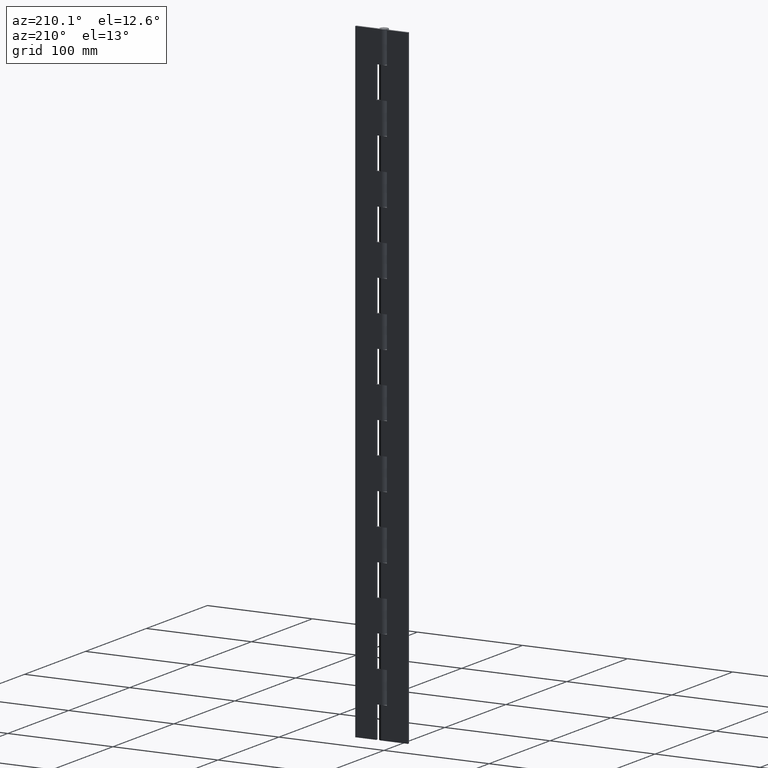
[diagram: clean part render]
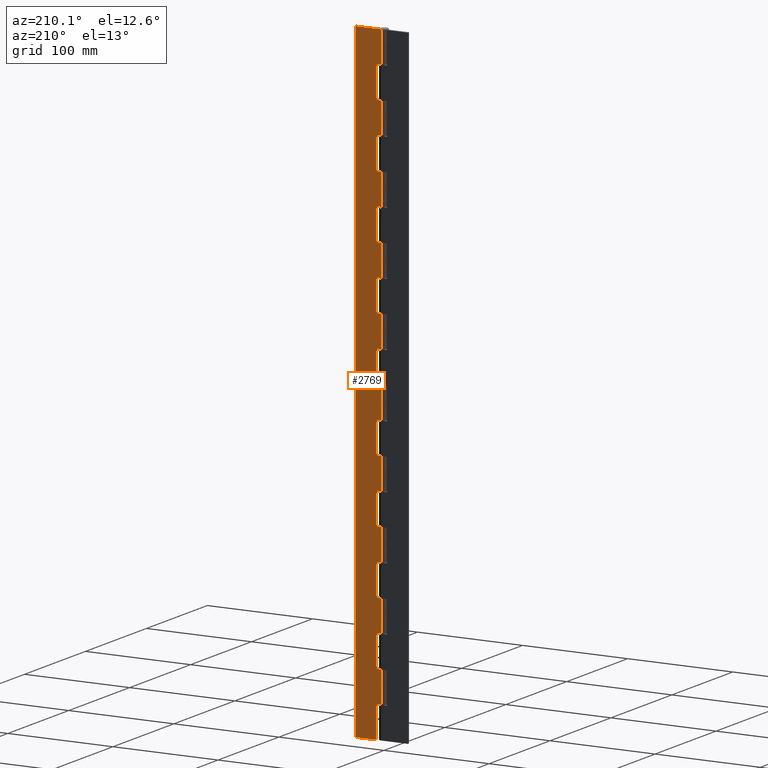
[diagram: same view with one face highlighted and labeled with its STEP entity id]
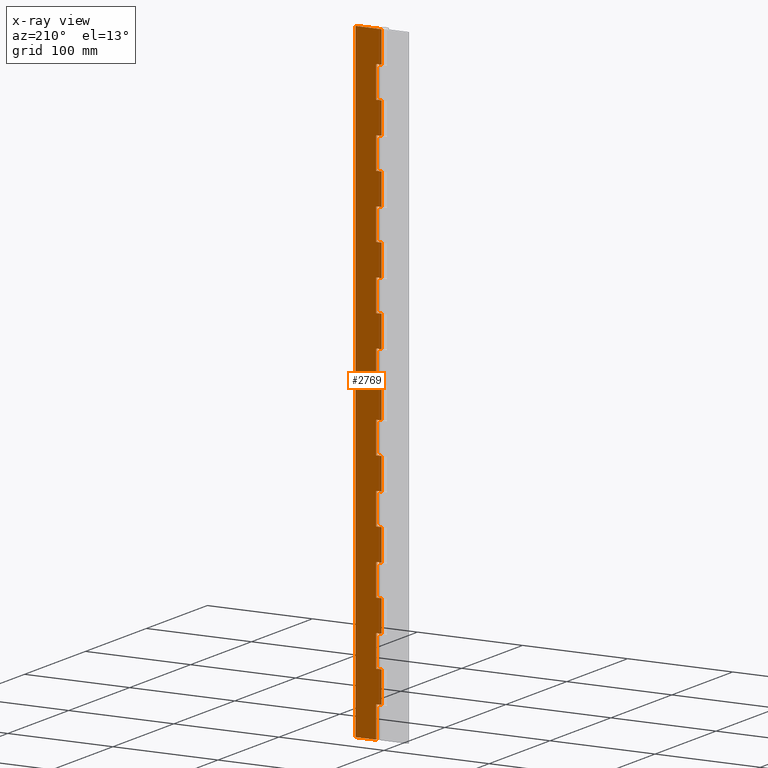
[diagram: x-ray of the same camera — body ghosted, the highlighted face saturated]
A machine part, auxiliary view. The second image highlights one B-rep face of the part: STEP entity #2769.
The next image is the same camera in x-ray: the body ghosted, the highlighted face saturated — about 0% of this face is hidden behind the body in this view.
In plain terms, the highlighted face is a freeform B-spline surface patch.
Its self-contained STEP definition (entity closure, byte-faithful):
#51=CARTESIAN_POINT('',(0.0,4.0,570.0));
#52=VERTEX_POINT('',#51);
#72=CARTESIAN_POINT('',(5.0,4.0,570.0));
#73=VERTEX_POINT('',#72);
#74=CARTESIAN_POINT('',(5.0,4.0,570.0));
#75=CARTESIAN_POINT('',(0.0,4.0,570.0));
#76=QUASI_UNIFORM_CURVE('',1,(#74,#75),.UNSPECIFIED.,.F.,.U.);
#77=EDGE_CURVE('',#73,#52,#76,.T.);
#136=CARTESIAN_POINT('',(5.0,4.0,540.0));
#137=VERTEX_POINT('',#136);
#143=CARTESIAN_POINT('',(0.0,4.0,540.0));
#144=VERTEX_POINT('',#143);
#145=CARTESIAN_POINT('',(0.0,4.0,540.0));
#146=CARTESIAN_POINT('',(5.0,4.0,540.0));
#147=QUASI_UNIFORM_CURVE('',1,(#145,#146),.UNSPECIFIED.,.F.,.U.);
#148=EDGE_CURVE('',#144,#137,#147,.T.);
#211=CARTESIAN_POINT('',(5.0,4.0,540.0));
#212=CARTESIAN_POINT('',(5.0,4.0,570.0));
#213=QUASI_UNIFORM_CURVE('',1,(#211,#212),.UNSPECIFIED.,.F.,.U.);
#214=EDGE_CURVE('',#137,#73,#213,.T.);
#227=CARTESIAN_POINT('',(0.0,4.0,510.0));
#228=VERTEX_POINT('',#227);
#248=CARTESIAN_POINT('',(5.0,4.0,510.0));
#249=VERTEX_POINT('',#248);
#250=CARTESIAN_POINT('',(5.0,4.0,510.0));
#251=CARTESIAN_POINT('',(0.0,4.0,510.0));
#252=QUASI_UNIFORM_CURVE('',1,(#250,#251),.UNSPECIFIED.,.F.,.U.);
#253=EDGE_CURVE('',#249,#228,#252,.T.);
#312=CARTESIAN_POINT('',(5.0,4.0,480.0));
#313=VERTEX_POINT('',#312);
#319=CARTESIAN_POINT('',(0.0,4.0,480.0));
#320=VERTEX_POINT('',#319);
#321=CARTESIAN_POINT('',(0.0,4.0,480.0));
#322=CARTESIAN_POINT('',(5.0,4.0,480.0));
#323=QUASI_UNIFORM_CURVE('',1,(#321,#322),.UNSPECIFIED.,.F.,.U.);
#324=EDGE_CURVE('',#320,#313,#323,.T.);
#387=CARTESIAN_POINT('',(5.0,4.0,480.0));
#388=CARTESIAN_POINT('',(5.0,4.0,510.0));
#389=QUASI_UNIFORM_CURVE('',1,(#387,#388),.UNSPECIFIED.,.F.,.U.);
#390=EDGE_CURVE('',#313,#249,#389,.T.);
#403=CARTESIAN_POINT('',(0.0,4.0,450.0));
#404=VERTEX_POINT('',#403);
#424=CARTESIAN_POINT('',(5.0,4.0,450.0));
#425=VERTEX_POINT('',#424);
#426=CARTESIAN_POINT('',(5.0,4.0,450.0));
#427=CARTESIAN_POINT('',(0.0,4.0,450.0));
#428=QUASI_UNIFORM_CURVE('',1,(#426,#427),.UNSPECIFIED.,.F.,.U.);
#429=EDGE_CURVE('',#425,#404,#428,.T.);
#488=CARTESIAN_POINT('',(5.0,4.0,420.0));
#489=VERTEX_POINT('',#488);
#495=CARTESIAN_POINT('',(0.0,4.0,420.0));
#496=VERTEX_POINT('',#495);
#497=CARTESIAN_POINT('',(0.0,4.0,420.0));
#498=CARTESIAN_POINT('',(5.0,4.0,420.0));
#499=QUASI_UNIFORM_CURVE('',1,(#497,#498),.UNSPECIFIED.,.F.,.U.);
#500=EDGE_CURVE('',#496,#489,#499,.T.);
#563=CARTESIAN_POINT('',(5.0,4.0,420.0));
#564=CARTESIAN_POINT('',(5.0,4.0,450.0));
#565=QUASI_UNIFORM_CURVE('',1,(#563,#564),.UNSPECIFIED.,.F.,.U.);
#566=EDGE_CURVE('',#489,#425,#565,.T.);
#579=CARTESIAN_POINT('',(0.0,4.0,390.0));
#580=VERTEX_POINT('',#579);
#600=CARTESIAN_POINT('',(5.0,4.0,390.0));
#601=VERTEX_POINT('',#600);
#602=CARTESIAN_POINT('',(5.0,4.0,390.0));
#603=CARTESIAN_POINT('',(0.0,4.0,390.0));
#604=QUASI_UNIFORM_CURVE('',1,(#602,#603),.UNSPECIFIED.,.F.,.U.);
#605=EDGE_CURVE('',#601,#580,#604,.T.);
#664=CARTESIAN_POINT('',(5.0,4.0,360.0));
#665=VERTEX_POINT('',#664);
#671=CARTESIAN_POINT('',(0.0,4.0,360.0));
#672=VERTEX_POINT('',#671);
#673=CARTESIAN_POINT('',(0.0,4.0,360.0));
#674=CARTESIAN_POINT('',(5.0,4.0,360.0));
#675=QUASI_UNIFORM_CURVE('',1,(#673,#674),.UNSPECIFIED.,.F.,.U.);
#676=EDGE_CURVE('',#672,#665,#675,.T.);
#739=CARTESIAN_POINT('',(5.0,4.0,360.0));
#740=CARTESIAN_POINT('',(5.0,4.0,390.0));
#741=QUASI_UNIFORM_CURVE('',1,(#739,#740),.UNSPECIFIED.,.F.,.U.);
#742=EDGE_CURVE('',#665,#601,#741,.T.);
#755=CARTESIAN_POINT('',(0.0,4.0,330.0));
#756=VERTEX_POINT('',#755);
#776=CARTESIAN_POINT('',(5.0,4.0,330.0));
#777=VERTEX_POINT('',#776);
#778=CARTESIAN_POINT('',(5.0,4.0,330.0));
#779=CARTESIAN_POINT('',(0.0,4.0,330.0));
#780=QUASI_UNIFORM_CURVE('',1,(#778,#779),.UNSPECIFIED.,.F.,.U.);
#781=EDGE_CURVE('',#777,#756,#780,.T.);
#840=CARTESIAN_POINT('',(5.0,4.0,300.0));
#841=VERTEX_POINT('',#840);
#847=CARTESIAN_POINT('',(0.0,4.0,300.0));
#848=VERTEX_POINT('',#847);
#849=CARTESIAN_POINT('',(0.0,4.0,300.0));
#850=CARTESIAN_POINT('',(5.0,4.0,300.0));
#851=QUASI_UNIFORM_CURVE('',1,(#849,#850),.UNSPECIFIED.,.F.,.U.);
#852=EDGE_CURVE('',#848,#841,#851,.T.);
#915=CARTESIAN_POINT('',(5.0,4.0,300.0));
#916=CARTESIAN_POINT('',(5.0,4.0,330.0));
#917=QUASI_UNIFORM_CURVE('',1,(#915,#916),.UNSPECIFIED.,.F.,.U.);
#918=EDGE_CURVE('',#841,#777,#917,.T.);
#931=CARTESIAN_POINT('',(0.0,4.0,270.0));
#932=VERTEX_POINT('',#931);
#952=CARTESIAN_POINT('',(5.0,4.0,270.0));
#953=VERTEX_POINT('',#952);
#954=CARTESIAN_POINT('',(5.0,4.0,270.0));
#955=CARTESIAN_POINT('',(0.0,4.0,270.0));
#956=QUASI_UNIFORM_CURVE('',1,(#954,#955),.UNSPECIFIED.,.F.,.U.);
#957=EDGE_CURVE('',#953,#932,#956,.T.);
#1016=CARTESIAN_POINT('',(5.0,4.0,240.0));
#1017=VERTEX_POINT('',#1016);
#1023=CARTESIAN_POINT('',(0.0,4.0,240.0));
#1024=VERTEX_POINT('',#1023);
#1025=CARTESIAN_POINT('',(0.0,4.0,240.0));
#1026=CARTESIAN_POINT('',(5.0,4.0,240.0));
#1027=QUASI_UNIFORM_CURVE('',1,(#1025,#1026),.UNSPECIFIED.,.F.,.U.);
#1028=EDGE_CURVE('',#1024,#1017,#1027,.T.);
#1091=CARTESIAN_POINT('',(5.0,4.0,240.0));
#1092=CARTESIAN_POINT('',(5.0,4.0,270.0));
#1093=QUASI_UNIFORM_CURVE('',1,(#1091,#1092),.UNSPECIFIED.,.F.,.U.);
#1094=EDGE_CURVE('',#1017,#953,#1093,.T.);
#1107=CARTESIAN_POINT('',(0.0,4.0,210.0));
#1108=VERTEX_POINT('',#1107);
#1128=CARTESIAN_POINT('',(5.0,4.0,210.0));
#1129=VERTEX_POINT('',#1128);
#1130=CARTESIAN_POINT('',(5.0,4.0,210.0));
#1131=CARTESIAN_POINT('',(0.0,4.0,210.0));
#1132=QUASI_UNIFORM_CURVE('',1,(#1130,#1131),.UNSPECIFIED.,.F.,.U.);
#1133=EDGE_CURVE('',#1129,#1108,#1132,.T.);
#1192=CARTESIAN_POINT('',(5.0,4.0,180.0));
#1193=VERTEX_POINT('',#1192);
#1199=CARTESIAN_POINT('',(0.0,4.0,180.0));
#1200=VERTEX_POINT('',#1199);
#1201=CARTESIAN_POINT('',(0.0,4.0,180.0));
#1202=CARTESIAN_POINT('',(5.0,4.0,180.0));
#1203=QUASI_UNIFORM_CURVE('',1,(#1201,#1202),.UNSPECIFIED.,.F.,.U.);
#1204=EDGE_CURVE('',#1200,#1193,#1203,.T.);
#1267=CARTESIAN_POINT('',(5.0,4.0,180.0));
#1268=CARTESIAN_POINT('',(5.0,4.0,210.0));
#1269=QUASI_UNIFORM_CURVE('',1,(#1267,#1268),.UNSPECIFIED.,.F.,.U.);
#1270=EDGE_CURVE('',#1193,#1129,#1269,.T.);
#1283=CARTESIAN_POINT('',(0.0,4.0,150.0));
#1284=VERTEX_POINT('',#1283);
#1304=CARTESIAN_POINT('',(5.0,4.0,150.0));
#1305=VERTEX_POINT('',#1304);
#1306=CARTESIAN_POINT('',(5.0,4.0,150.0));
#1307=CARTESIAN_POINT('',(0.0,4.0,150.0));
#1308=QUASI_UNIFORM_CURVE('',1,(#1306,#1307),.UNSPECIFIED.,.F.,.U.);
#1309=EDGE_CURVE('',#1305,#1284,#1308,.T.);
#1368=CARTESIAN_POINT('',(5.0,4.0,120.0));
#1369=VERTEX_POINT('',#1368);
#1375=CARTESIAN_POINT('',(0.0,4.0,120.0));
#1376=VERTEX_POINT('',#1375);
#1377=CARTESIAN_POINT('',(0.0,4.0,120.0));
#1378=CARTESIAN_POINT('',(5.0,4.0,120.0));
#1379=QUASI_UNIFORM_CURVE('',1,(#1377,#1378),.UNSPECIFIED.,.F.,.U.);
#1380=EDGE_CURVE('',#1376,#1369,#1379,.T.);
#1443=CARTESIAN_POINT('',(5.0,4.0,120.0));
#1444=CARTESIAN_POINT('',(5.0,4.0,150.0));
#1445=QUASI_UNIFORM_CURVE('',1,(#1443,#1444),.UNSPECIFIED.,.F.,.U.);
#1446=EDGE_CURVE('',#1369,#1305,#1445,.T.);
#1459=CARTESIAN_POINT('',(0.0,4.0,90.0));
#1460=VERTEX_POINT('',#1459);
#1480=CARTESIAN_POINT('',(5.0,4.0,90.0));
#1481=VERTEX_POINT('',#1480);
#1482=CARTESIAN_POINT('',(5.0,4.0,90.0));
#1483=CARTESIAN_POINT('',(0.0,4.0,90.0));
#1484=QUASI_UNIFORM_CURVE('',1,(#1482,#1483),.UNSPECIFIED.,.F.,.U.);
#1485=EDGE_CURVE('',#1481,#1460,#1484,.T.);
#1544=CARTESIAN_POINT('',(5.0,4.0,60.0));
#1545=VERTEX_POINT('',#1544);
#1551=CARTESIAN_POINT('',(0.0,4.0,60.0));
#1552=VERTEX_POINT('',#1551);
#1553=CARTESIAN_POINT('',(0.0,4.0,60.0));
#1554=CARTESIAN_POINT('',(5.0,4.0,60.0));
#1555=QUASI_UNIFORM_CURVE('',1,(#1553,#1554),.UNSPECIFIED.,.F.,.U.);
#1556=EDGE_CURVE('',#1552,#1545,#1555,.T.);
#1619=CARTESIAN_POINT('',(5.0,4.0,60.0));
#1620=CARTESIAN_POINT('',(5.0,4.0,90.0));
#1621=QUASI_UNIFORM_CURVE('',1,(#1619,#1620),.UNSPECIFIED.,.F.,.U.);
#1622=EDGE_CURVE('',#1545,#1481,#1621,.T.);
#1642=CARTESIAN_POINT('',(5.0,4.0,30.0));
#1643=VERTEX_POINT('',#1642);
#1649=CARTESIAN_POINT('',(5.0,4.0,0.0));
#1650=VERTEX_POINT('',#1649);
#1651=CARTESIAN_POINT('',(5.0,4.0,0.0));
#1652=CARTESIAN_POINT('',(5.0,4.0,30.0));
#1653=QUASI_UNIFORM_CURVE('',1,(#1651,#1652),.UNSPECIFIED.,.F.,.U.);
#1654=EDGE_CURVE('',#1650,#1643,#1653,.T.);
#1671=CARTESIAN_POINT('',(0.0,4.0,30.0));
#1672=VERTEX_POINT('',#1671);
#1692=CARTESIAN_POINT('',(5.0,4.0,30.0));
#1693=CARTESIAN_POINT('',(0.0,4.0,30.0));
#1694=QUASI_UNIFORM_CURVE('',1,(#1692,#1693),.UNSPECIFIED.,.F.,.U.);
#1695=EDGE_CURVE('',#1643,#1672,#1694,.T.);
#1748=CARTESIAN_POINT('',(25.0,4.0,600.0));
#1749=VERTEX_POINT('',#1748);
#1755=CARTESIAN_POINT('',(0.0,4.0,600.0));
#1756=VERTEX_POINT('',#1755);
#1757=CARTESIAN_POINT('',(25.0,4.0,600.0));
#1758=CARTESIAN_POINT('',(0.0,4.0,600.0));
#1759=QUASI_UNIFORM_CURVE('',1,(#1757,#1758),.UNSPECIFIED.,.F.,.U.);
#1760=EDGE_CURVE('',#1749,#1756,#1759,.T.);
#1819=CARTESIAN_POINT('',(25.0,4.0,0.0));
#1820=VERTEX_POINT('',#1819);
#1826=CARTESIAN_POINT('',(25.0,4.0,600.0));
#1827=CARTESIAN_POINT('',(25.0,4.0,0.0));
#1828=QUASI_UNIFORM_CURVE('',1,(#1826,#1827),.UNSPECIFIED.,.F.,.U.);
#1829=EDGE_CURVE('',#1749,#1820,#1828,.T.);
#1846=CARTESIAN_POINT('',(25.0,4.0,0.0));
#1847=CARTESIAN_POINT('',(5.0,4.0,0.0));
#1848=QUASI_UNIFORM_CURVE('',1,(#1846,#1847),.UNSPECIFIED.,.F.,.U.);
#1849=EDGE_CURVE('',#1820,#1650,#1848,.T.);
#1936=CARTESIAN_POINT('',(0.0,4.0,60.0));
#1937=CARTESIAN_POINT('',(0.0,4.0,30.0));
#1938=QUASI_UNIFORM_CURVE('',1,(#1936,#1937),.UNSPECIFIED.,.F.,.U.);
#1939=EDGE_CURVE('',#1552,#1672,#1938,.T.);
#2022=CARTESIAN_POINT('',(0.0,4.0,120.0));
#2023=CARTESIAN_POINT('',(0.0,4.0,90.0));
#2024=QUASI_UNIFORM_CURVE('',1,(#2022,#2023),.UNSPECIFIED.,.F.,.U.);
#2025=EDGE_CURVE('',#1376,#1460,#2024,.T.);
#2108=CARTESIAN_POINT('',(0.0,4.0,180.0));
#2109=CARTESIAN_POINT('',(0.0,4.0,150.0));
#2110=QUASI_UNIFORM_CURVE('',1,(#2108,#2109),.UNSPECIFIED.,.F.,.U.);
#2111=EDGE_CURVE('',#1200,#1284,#2110,.T.);
#2194=CARTESIAN_POINT('',(0.0,4.0,240.0));
#2195=CARTESIAN_POINT('',(0.0,4.0,210.0));
#2196=QUASI_UNIFORM_CURVE('',1,(#2194,#2195),.UNSPECIFIED.,.F.,.U.);
#2197=EDGE_CURVE('',#1024,#1108,#2196,.T.);
#2280=CARTESIAN_POINT('',(0.0,4.0,300.0));
#2281=CARTESIAN_POINT('',(0.0,4.0,270.0));
#2282=QUASI_UNIFORM_CURVE('',1,(#2280,#2281),.UNSPECIFIED.,.F.,.U.);
#2283=EDGE_CURVE('',#848,#932,#2282,.T.);
#2366=CARTESIAN_POINT('',(0.0,4.0,360.0));
#2367=CARTESIAN_POINT('',(0.0,4.0,330.0));
#2368=QUASI_UNIFORM_CURVE('',1,(#2366,#2367),.UNSPECIFIED.,.F.,.U.);
#2369=EDGE_CURVE('',#672,#756,#2368,.T.);
#2452=CARTESIAN_POINT('',(0.0,4.0,420.0));
#2453=CARTESIAN_POINT('',(0.0,4.0,390.0));
#2454=QUASI_UNIFORM_CURVE('',1,(#2452,#2453),.UNSPECIFIED.,.F.,.U.);
#2455=EDGE_CURVE('',#496,#580,#2454,.T.);
#2538=CARTESIAN_POINT('',(0.0,4.0,480.0));
#2539=CARTESIAN_POINT('',(0.0,4.0,450.0));
#2540=QUASI_UNIFORM_CURVE('',1,(#2538,#2539),.UNSPECIFIED.,.F.,.U.);
#2541=EDGE_CURVE('',#320,#404,#2540,.T.);
#2679=CARTESIAN_POINT('',(0.0,4.0,600.0));
#2680=CARTESIAN_POINT('',(0.0,4.0,570.0));
#2681=QUASI_UNIFORM_CURVE('',1,(#2679,#2680),.UNSPECIFIED.,.F.,.U.);
#2682=EDGE_CURVE('',#1756,#52,#2681,.T.);
#2710=CARTESIAN_POINT('',(0.0,4.0,540.0));
#2711=CARTESIAN_POINT('',(0.0,4.0,510.0));
#2712=QUASI_UNIFORM_CURVE('',1,(#2710,#2711),.UNSPECIFIED.,.F.,.U.);
#2713=EDGE_CURVE('',#144,#228,#2712,.T.);
#2720=CARTESIAN_POINT('',(-1.248749951545148,4.0,629.969998837083610));
#2721=CARTESIAN_POINT('',(-1.248749951545148,4.0,-29.970014930337669));
#2722=CARTESIAN_POINT('',(26.248750622097401,4.0,629.969998837083610));
#2723=CARTESIAN_POINT('',(26.248750622097401,4.0,-29.970014930337669));
#2724=B_SPLINE_SURFACE_WITH_KNOTS('',1,1,((#2720,#2722),(#2721,#2723)),.UNSPECIFIED.,.F.,.F.,.U.,(2,2),(2,2),(0.0,659.940013767421310),(0.0,27.497500573642551),.UNSPECIFIED.);
#2725=ORIENTED_EDGE('',*,*,#148,.T.);
#2726=ORIENTED_EDGE('',*,*,#214,.T.);
#2727=ORIENTED_EDGE('',*,*,#77,.T.);
#2728=ORIENTED_EDGE('',*,*,#2682,.F.);
#2729=ORIENTED_EDGE('',*,*,#1760,.F.);
#2730=ORIENTED_EDGE('',*,*,#1829,.T.);
#2731=ORIENTED_EDGE('',*,*,#1849,.T.);
#2732=ORIENTED_EDGE('',*,*,#1654,.T.);
#2733=ORIENTED_EDGE('',*,*,#1695,.T.);
#2734=ORIENTED_EDGE('',*,*,#1939,.F.);
#2735=ORIENTED_EDGE('',*,*,#1556,.T.);
#2736=ORIENTED_EDGE('',*,*,#1622,.T.);
#2737=ORIENTED_EDGE('',*,*,#1485,.T.);
#2738=ORIENTED_EDGE('',*,*,#2025,.F.);
#2739=ORIENTED_EDGE('',*,*,#1380,.T.);
#2740=ORIENTED_EDGE('',*,*,#1446,.T.);
#2741=ORIENTED_EDGE('',*,*,#1309,.T.);
#2742=ORIENTED_EDGE('',*,*,#2111,.F.);
#2743=ORIENTED_EDGE('',*,*,#1204,.T.);
#2744=ORIENTED_EDGE('',*,*,#1270,.T.);
#2745=ORIENTED_EDGE('',*,*,#1133,.T.);
#2746=ORIENTED_EDGE('',*,*,#2197,.F.);
#2747=ORIENTED_EDGE('',*,*,#1028,.T.);
#2748=ORIENTED_EDGE('',*,*,#1094,.T.);
#2749=ORIENTED_EDGE('',*,*,#957,.T.);
#2750=ORIENTED_EDGE('',*,*,#2283,.F.);
#2751=ORIENTED_EDGE('',*,*,#852,.T.);
#2752=ORIENTED_EDGE('',*,*,#918,.T.);
#2753=ORIENTED_EDGE('',*,*,#781,.T.);
#2754=ORIENTED_EDGE('',*,*,#2369,.F.);
#2755=ORIENTED_EDGE('',*,*,#676,.T.);
#2756=ORIENTED_EDGE('',*,*,#742,.T.);
#2757=ORIENTED_EDGE('',*,*,#605,.T.);
#2758=ORIENTED_EDGE('',*,*,#2455,.F.);
#2759=ORIENTED_EDGE('',*,*,#500,.T.);
#2760=ORIENTED_EDGE('',*,*,#566,.T.);
#2761=ORIENTED_EDGE('',*,*,#429,.T.);
#2762=ORIENTED_EDGE('',*,*,#2541,.F.);
#2763=ORIENTED_EDGE('',*,*,#324,.T.);
#2764=ORIENTED_EDGE('',*,*,#390,.T.);
#2765=ORIENTED_EDGE('',*,*,#253,.T.);
#2766=ORIENTED_EDGE('',*,*,#2713,.F.);
#2767=EDGE_LOOP('',(#2725,#2726,#2727,#2728,#2729,#2730,#2731,#2732,#2733,#2734,#2735,#2736,#2737,#2738,#2739,#2740,#2741,#2742,#2743,#2744,#2745,#2746,#2747,#2748,#2749,#2750,#2751,#2752,#2753,#2754,#2755,#2756,#2757,#2758,#2759,#2760,#2761,#2762,#2763,#2764,#2765,#2766));
#2768=FACE_OUTER_BOUND('',#2767,.T.);
#2769=ADVANCED_FACE('',(#2768),#2724,.F.);